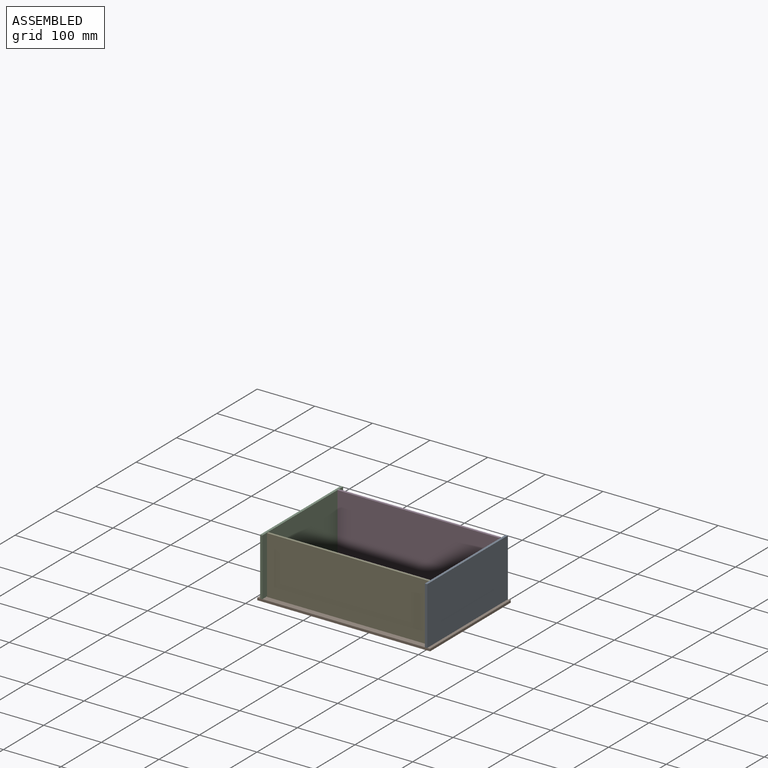
[diagram: assembled view]
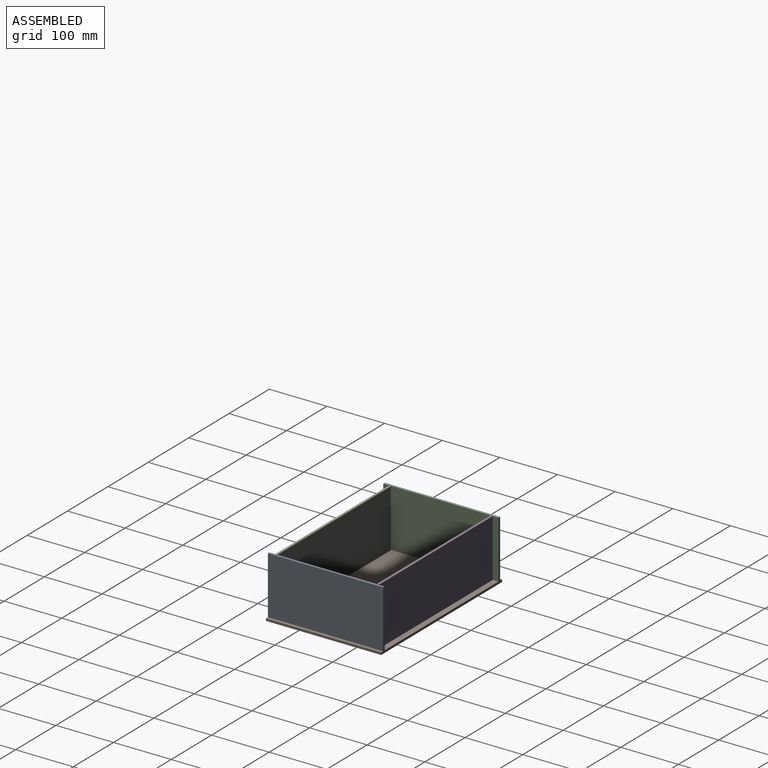
[diagram: assembled view, second angle]
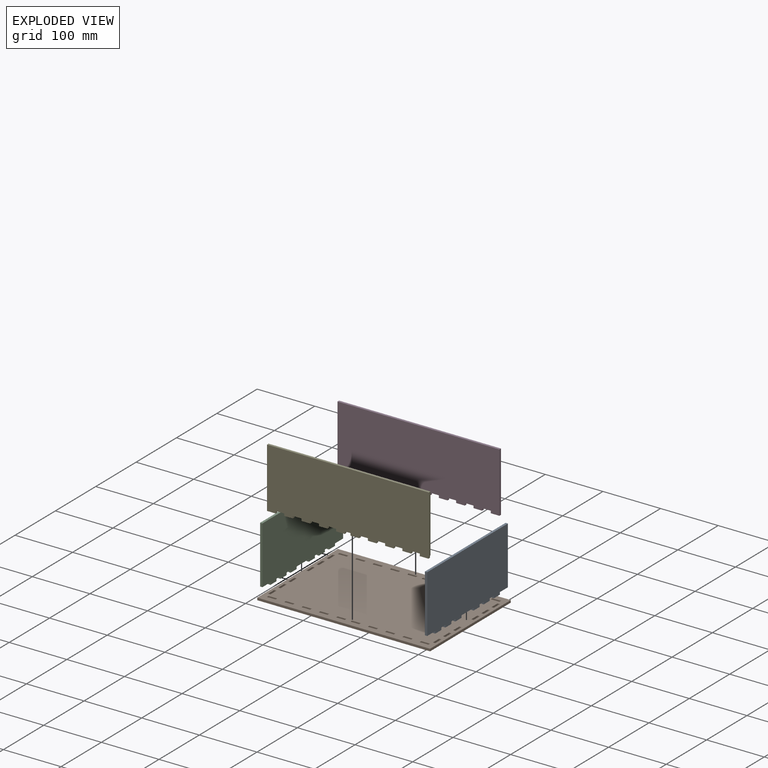
[diagram: exploded view]
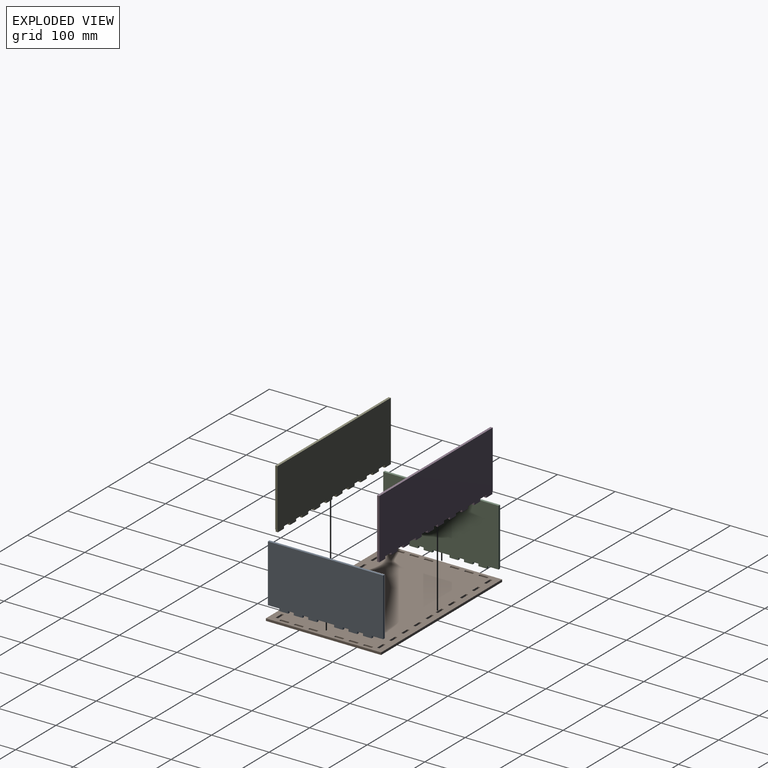
[diagram: exploded view, second angle]
ASSEMBLY  parts=5 mates=4
PART A: 30 faces, bbox 4x200x104 mm
  f0: plane 4x4mm, normal (0,-1,0), area 16mm2, adj f1,f3,f4,f29
  f1: plane 200x104mm, normal (1,0,0), area 20360mm2, adj f0,f2,f4,f5,f6,f7,f8,f9
  f2: plane 4x4mm, normal (0,1,0), area 16mm2, adj f1,f3,f4,f5
  f3: plane 200x104mm, normal (-1,0,0), area 20360mm2, adj f0,f2,f4,f5,f6,f7,f8,f9
  f4: plane 15x4mm, normal (0,0,-1), area 60mm2, adj f0,f1,f2,f3
  f5: plane 10x4mm, normal (0,0,-1), area 40mm2, adj f1,f2,f3,f6
  f6: plane 4x4mm, normal (0,-1,0), area 16mm2, adj f1,f3,f5,f8
  f7: plane 4x4mm, normal (0,1,0), area 16mm2, adj f1,f3,f8,f9
  f8: plane 15x4mm, normal (0,0,-1), area 60mm2, adj f1,f3,f6,f7
  f9: plane 10x4mm, normal (0,0,-1), area 40mm2, adj f1,f3,f7,f10
  f10: plane 4x4mm, normal (0,-1,0), area 16mm2, adj f1,f3,f9,f12
  f11: plane 4x4mm, normal (0,1,0), area 16mm2, adj f1,f3,f12,f13
  f12: plane 15x4mm, normal (0,0,-1), area 60mm2, adj f1,f3,f10,f11
  f13: plane 30x4mm, normal (0,0,-1), area 120mm2, adj f1,f3,f11,f15
  f14: plane 4x4mm, normal (0,1,0), area 16mm2, adj f1,f3,f16,f17
  f15: plane 4x4mm, normal (0,-1,0), area 16mm2, adj f1,f3,f13,f16
  f16: plane 15x4mm, normal (0,0,-1), area 60mm2, adj f1,f3,f14,f15
  f17: plane 10x4mm, normal (0,0,-1), area 40mm2, adj f1,f3,f14,f19
  f18: plane 4x4mm, normal (0,1,0), area 16mm2, adj f1,f3,f20,f21
  f19: plane 4x4mm, normal (0,-1,0), area 16mm2, adj f1,f3,f17,f20
  f20: plane 15x4mm, normal (0,0,-1), area 60mm2, adj f1,f3,f18,f19
  f21: plane 10x4mm, normal (0,0,-1), area 40mm2, adj f1,f3,f18,f23
  f22: plane 4x4mm, normal (0,1,0), area 16mm2, adj f1,f3,f24,f25
  f23: plane 4x4mm, normal (0,-1,0), area 16mm2, adj f1,f3,f21,f24
  f24: plane 15x4mm, normal (0,0,-1), area 60mm2, adj f1,f3,f22,f23
  f25: plane 20x4mm, normal (0,0,-1), area 80mm2, adj f1,f3,f22,f27
  f26: plane 100x4mm, normal (0,-1,0), area 400mm2, adj f1,f3,f28,f29
  f27: plane 100x4mm, normal (0,1,0), area 400mm2, adj f1,f3,f25,f28
  f28: plane 200x4mm, normal (0,0,1), area 800mm2, adj f1,f3,f26,f27
  f29: plane 20x4mm, normal (0,0,-1), area 80mm2, adj f0,f1,f3,f26
PART B: 134 faces, bbox 300x200x4 mm
  f0: plane 15x4mm, normal (-1,0,0), area 60mm2, adj f1,f131,f132,f133
  f1: plane 4x4mm, normal (0,1,0), area 16mm2, adj f0,f2,f132,f133
  f2: plane 15x4mm, normal (1,0,0), area 60mm2, adj f1,f131,f132,f133
  f3: plane 4x4mm, normal (0,1,0), area 16mm2, adj f4,f99,f132,f133
  f4: plane 15x4mm, normal (1,0,0), area 60mm2, adj f3,f5,f132,f133
  f5: plane 4x4mm, normal (0,-1,0), area 16mm2, adj f4,f99,f132,f133
  f6: plane 15x4mm, normal (-1,0,0), area 60mm2, adj f7,f100,f132,f133
  f7: plane 4x4mm, normal (0,1,0), area 16mm2, adj f6,f8,f132,f133
  f8: plane 15x4mm, normal (1,0,0), area 60mm2, adj f7,f100,f132,f133
  f9: plane 15x4mm, normal (-1,0,0), area 60mm2, adj f10,f101,f132,f133
  f10: plane 4x4mm, normal (0,1,0), area 16mm2, adj f9,f11,f132,f133
  f11: plane 15x4mm, normal (1,0,0), area 60mm2, adj f10,f101,f132,f133
  f12: plane 4x4mm, normal (-1,0,0), area 16mm2, adj f13,f102,f132,f133
  f13: plane 15x4mm, normal (0,1,0), area 60mm2, adj f12,f14,f132,f133
  f14: plane 4x4mm, normal (1,0,0), area 16mm2, adj f13,f102,f132,f133
  f15: plane 4x4mm, normal (1,0,0), area 16mm2, adj f16,f103,f132,f133
  f16: plane 15x4mm, normal (0,-1,0), area 60mm2, adj f15,f17,f132,f133
  f17: plane 4x4mm, normal (-1,0,0), area 16mm2, adj f16,f103,f132,f133
  f18: plane 4x4mm, normal (1,0,0), area 16mm2, adj f19,f104,f132,f133
  f19: plane 15x4mm, normal (0,-1,0), area 60mm2, adj f18,f20,f132,f133
  f20: plane 4x4mm, normal (-1,0,0), area 16mm2, adj f19,f104,f132,f133
  f21: plane 15x4mm, normal (1,0,0), area 60mm2, adj f22,f105,f132,f133
  f22: plane 4x4mm, normal (0,-1,0), area 16mm2, adj f21,f23,f132,f133
  f23: plane 15x4mm, normal (-1,0,0), area 60mm2, adj f22,f105,f132,f133
  f24: plane 15x4mm, normal (0,1,0), area 60mm2, adj f25,f106,f132,f133
  f25: plane 4x4mm, normal (1,0,0), area 16mm2, adj f24,f26,f132,f133
  f26: plane 15x4mm, normal (0,-1,0), area 60mm2, adj f25,f106,f132,f133
  f27: plane 15x4mm, normal (0,1,0), area 60mm2, adj f28,f107,f132,f133
  f28: plane 4x4mm, normal (1,0,0), area 16mm2, adj f27,f29,f132,f133
  f29: plane 15x4mm, normal (0,-1,0), area 60mm2, adj f28,f107,f132,f133
  f30: plane 15x4mm, normal (0,1,0), area 60mm2, adj f31,f108,f132,f133
  f31: plane 4x4mm, normal (1,0,0), area 16mm2, adj f30,f32,f132,f133
  f32: plane 15x4mm, normal (0,-1,0), area 60mm2, adj f31,f108,f132,f133
  f33: plane 200x4mm, normal (1,0,0), area 800mm2, adj f34,f109,f132,f133
  f34: plane 300x4mm, normal (0,1,0), area 1200mm2, adj f33,f35,f132,f133
  f35: plane 200x4mm, normal (-1,0,0), area 800mm2, adj f34,f109,f132,f133
  f36: plane 15x4mm, normal (0,-1,0), area 60mm2, adj f37,f110,f132,f133
  f37: plane 4x4mm, normal (-1,0,0), area 16mm2, adj f36,f38,f132,f133
  f38: plane 15x4mm, normal (0,1,0), area 60mm2, adj f37,f110,f132,f133
  f39: plane 4x4mm, normal (-1,0,0), area 16mm2, adj f40,f111,f132,f133
  f40: plane 15x4mm, normal (0,1,0), area 60mm2, adj f39,f41,f132,f133
  f41: plane 4x4mm, normal (1,0,0), area 16mm2, adj f40,f111,f132,f133
  f42: plane 4x4mm, normal (-1,0,0), area 16mm2, adj f43,f112,f132,f133
  f43: plane 15x4mm, normal (0,1,0), area 60mm2, adj f42,f44,f132,f133
  f44: plane 4x4mm, normal (1,0,0), area 16mm2, adj f43,f112,f132,f133
  f45: plane 4x4mm, normal (-1,0,0), area 16mm2, adj f46,f113,f132,f133
  f46: plane 15x4mm, normal (0,1,0), area 60mm2, adj f45,f47,f132,f133
  f47: plane 4x4mm, normal (1,0,0), area 16mm2, adj f46,f113,f132,f133
  f48: plane 4x4mm, normal (-1,0,0), area 16mm2, adj f49,f114,f132,f133
  f49: plane 15x4mm, normal (0,1,0), area 60mm2, adj f48,f50,f132,f133
  f50: plane 4x4mm, normal (1,0,0), area 16mm2, adj f49,f114,f132,f133
  f51: plane 15x4mm, normal (0,1,0), area 60mm2, adj f52,f115,f132,f133
  f52: plane 4x4mm, normal (1,0,0), area 16mm2, adj f51,f53,f132,f133
  f53: plane 15x4mm, normal (0,-1,0), area 60mm2, adj f52,f115,f132,f133
  f54: plane 4x4mm, normal (-1,0,0), area 16mm2, adj f55,f116,f132,f133
  f55: plane 15x4mm, normal (0,1,0), area 60mm2, adj f54,f56,f132,f133
  f56: plane 4x4mm, normal (1,0,0), area 16mm2, adj f55,f116,f132,f133
  f57: plane 4x4mm, normal (0,1,0), area 16mm2, adj f58,f117,f132,f133
  f58: plane 15x4mm, normal (1,0,0), area 60mm2, adj f57,f59,f132,f133
  f59: plane 4x4mm, normal (0,-1,0), area 16mm2, adj f58,f117,f132,f133
  f60: plane 4x4mm, normal (0,1,0), area 16mm2, adj f61,f118,f132,f133
  f61: plane 15x4mm, normal (1,0,0), area 60mm2, adj f60,f62,f132,f133
  f62: plane 4x4mm, normal (0,-1,0), area 16mm2, adj f61,f118,f132,f133
  f63: plane 4x4mm, normal (0,1,0), area 16mm2, adj f64,f119,f132,f133
  f64: plane 15x4mm, normal (1,0,0), area 60mm2, adj f63,f65,f132,f133
  f65: plane 4x4mm, normal (0,-1,0), area 16mm2, adj f64,f119,f132,f133
  f66: plane 15x4mm, normal (-1,0,0), area 60mm2, adj f67,f120,f132,f133
  f67: plane 4x4mm, normal (0,1,0), area 16mm2, adj f66,f68,f132,f133
  f68: plane 15x4mm, normal (1,0,0), area 60mm2, adj f67,f120,f132,f133
  f69: plane 4x4mm, normal (0,1,0), area 16mm2, adj f70,f121,f132,f133
  f70: plane 15x4mm, normal (1,0,0), area 60mm2, adj f69,f71,f132,f133
  f71: plane 4x4mm, normal (0,-1,0), area 16mm2, adj f70,f121,f132,f133
  f72: plane 15x4mm, normal (0,1,0), area 60mm2, adj f73,f122,f132,f133
  f73: plane 4x4mm, normal (1,0,0), area 16mm2, adj f72,f74,f132,f133
  f74: plane 15x4mm, normal (0,-1,0), area 60mm2, adj f73,f122,f132,f133
  f75: plane 4x4mm, normal (1,0,0), area 16mm2, adj f76,f123,f132,f133
  f76: plane 15x4mm, normal (0,-1,0), area 60mm2, adj f75,f77,f132,f133
  f77: plane 4x4mm, normal (-1,0,0), area 16mm2, adj f76,f123,f132,f133
  f78: plane 4x4mm, normal (1,0,0), area 16mm2, adj f79,f124,f132,f133
  f79: plane 15x4mm, normal (0,-1,0), area 60mm2, adj f78,f80,f132,f133
  f80: plane 4x4mm, normal (-1,0,0), area 16mm2, adj f79,f124,f132,f133
  f81: plane 4x4mm, normal (1,0,0), area 16mm2, adj f82,f125,f132,f133
  f82: plane 15x4mm, normal (0,-1,0), area 60mm2, adj f81,f83,f132,f133
  f83: plane 4x4mm, normal (-1,0,0), area 16mm2, adj f82,f125,f132,f133
  f84: plane 4x4mm, normal (1,0,0), area 16mm2, adj f85,f126,f132,f133
  f85: plane 15x4mm, normal (0,-1,0), area 60mm2, adj f84,f86,f132,f133
  f86: plane 4x4mm, normal (-1,0,0), area 16mm2, adj f85,f126,f132,f133
  f87: plane 4x4mm, normal (1,0,0), area 16mm2, adj f88,f127,f132,f133
  f88: plane 15x4mm, normal (0,-1,0), area 60mm2, adj f87,f89,f132,f133
  f89: plane 4x4mm, normal (-1,0,0), area 16mm2, adj f88,f127,f132,f133
  f90: plane 4x4mm, normal (1,0,0), area 16mm2, adj f91,f128,f132,f133
  f91: plane 15x4mm, normal (0,-1,0), area 60mm2, adj f90,f92,f132,f133
  f92: plane 4x4mm, normal (-1,0,0), area 16mm2, adj f91,f128,f132,f133
  f93: plane 15x4mm, normal (1,0,0), area 60mm2, adj f94,f129,f132,f133
  f94: plane 4x4mm, normal (0,-1,0), area 16mm2, adj f93,f95,f132,f133
  f95: plane 15x4mm, normal (-1,0,0), area 60mm2, adj f94,f129,f132,f133
  f96: plane 15x4mm, normal (-1,0,0), area 60mm2, adj f97,f130,f132,f133
  f97: plane 4x4mm, normal (0,1,0), area 16mm2, adj f96,f98,f132,f133
  f98: plane 15x4mm, normal (1,0,0), area 60mm2, adj f97,f130,f132,f133
  f99: plane 15x4mm, normal (-1,0,0), area 60mm2, adj f3,f5,f132,f133
  f100: plane 4x4mm, normal (0,-1,0), area 16mm2, adj f6,f8,f132,f133
  f101: plane 4x4mm, normal (0,-1,0), area 16mm2, adj f9,f11,f132,f133
  f102: plane 15x4mm, normal (0,-1,0), area 60mm2, adj f12,f14,f132,f133
  f103: plane 15x4mm, normal (0,1,0), area 60mm2, adj f15,f17,f132,f133
  f104: plane 15x4mm, normal (0,1,0), area 60mm2, adj f18,f20,f132,f133
  f105: plane 4x4mm, normal (0,1,0), area 16mm2, adj f21,f23,f132,f133
  f106: plane 4x4mm, normal (-1,0,0), area 16mm2, adj f24,f26,f132,f133
  f107: plane 4x4mm, normal (-1,0,0), area 16mm2, adj f27,f29,f132,f133
  f108: plane 4x4mm, normal (-1,0,0), area 16mm2, adj f30,f32,f132,f133
  f109: plane 300x4mm, normal (0,-1,0), area 1200mm2, adj f33,f35,f132,f133
  f110: plane 4x4mm, normal (1,0,0), area 16mm2, adj f36,f38,f132,f133
  f111: plane 15x4mm, normal (0,-1,0), area 60mm2, adj f39,f41,f132,f133
  f112: plane 15x4mm, normal (0,-1,0), area 60mm2, adj f42,f44,f132,f133
  f113: plane 15x4mm, normal (0,-1,0), area 60mm2, adj f45,f47,f132,f133
  f114: plane 15x4mm, normal (0,-1,0), area 60mm2, adj f48,f50,f132,f133
  f115: plane 4x4mm, normal (-1,0,0), area 16mm2, adj f51,f53,f132,f133
  f116: plane 15x4mm, normal (0,-1,0), area 60mm2, adj f54,f56,f132,f133
  f117: plane 15x4mm, normal (-1,0,0), area 60mm2, adj f57,f59,f132,f133
  f118: plane 15x4mm, normal (-1,0,0), area 60mm2, adj f60,f62,f132,f133
  f119: plane 15x4mm, normal (-1,0,0), area 60mm2, adj f63,f65,f132,f133
  f120: plane 4x4mm, normal (0,-1,0), area 16mm2, adj f66,f68,f132,f133
  f121: plane 15x4mm, normal (-1,0,0), area 60mm2, adj f69,f71,f132,f133
  f122: plane 4x4mm, normal (-1,0,0), area 16mm2, adj f72,f74,f132,f133
  f123: plane 15x4mm, normal (0,1,0), area 60mm2, adj f75,f77,f132,f133
  f124: plane 15x4mm, normal (0,1,0), area 60mm2, adj f78,f80,f132,f133
  f125: plane 15x4mm, normal (0,1,0), area 60mm2, adj f81,f83,f132,f133
  f126: plane 15x4mm, normal (0,1,0), area 60mm2, adj f84,f86,f132,f133
  f127: plane 15x4mm, normal (0,1,0), area 60mm2, adj f87,f89,f132,f133
  f128: plane 15x4mm, normal (0,1,0), area 60mm2, adj f90,f92,f132,f133
  f129: plane 4x4mm, normal (0,1,0), area 16mm2, adj f93,f95,f132,f133
  f130: plane 4x4mm, normal (0,-1,0), area 16mm2, adj f96,f98,f132,f133
  f131: plane 4x4mm, normal (0,-1,0), area 16mm2, adj f0,f2,f132,f133
  f132: plane 300x200mm, normal (0,0,1), area 58080mm2, adj f0,f1,f2,f3,f4,f5,f6,f7
  f133: plane 300x200mm, normal (0,0,-1), area 58080mm2, adj f0,f1,f2,f3,f4,f5,f6,f7
PART C: same geometry as A
PART D: 44 faces, bbox 281x4x104 mm
  f0: plane 4x4mm, normal (1,0,0), area 16mm2, adj f1,f3,f4,f5
  f1: plane 281x104mm, normal (0,1,0), area 28700mm2, adj f0,f2,f4,f5,f6,f7,f8,f9
  f2: plane 4x4mm, normal (-1,0,0), area 16mm2, adj f1,f3,f4,f43
  f3: plane 281x104mm, normal (0,-1,0), area 28700mm2, adj f0,f2,f4,f5,f6,f7,f8,f9
  f4: plane 15x4mm, normal (0,0,-1), area 60mm2, adj f0,f1,f2,f3
  f5: plane 15x4mm, normal (0,0,-1), area 60mm2, adj f0,f1,f3,f7
  f6: plane 4x4mm, normal (1,0,0), area 16mm2, adj f1,f3,f8,f9
  f7: plane 4x4mm, normal (-1,0,0), area 16mm2, adj f1,f3,f5,f8
  f8: plane 15x4mm, normal (0,0,-1), area 60mm2, adj f1,f3,f6,f7
  f9: plane 15x4mm, normal (0,0,-1), area 60mm2, adj f1,f3,f6,f11
  f10: plane 4x4mm, normal (1,0,0), area 16mm2, adj f1,f3,f12,f13
  f11: plane 4x4mm, normal (-1,0,0), area 16mm2, adj f1,f3,f9,f12
  f12: plane 15x4mm, normal (0,0,-1), area 60mm2, adj f1,f3,f10,f11
  f13: plane 15x4mm, normal (0,0,-1), area 60mm2, adj f1,f3,f10,f15
  f14: plane 4x4mm, normal (1,0,0), area 16mm2, adj f1,f3,f16,f17
  f15: plane 4x4mm, normal (-1,0,0), area 16mm2, adj f1,f3,f13,f16
  f16: plane 15x4mm, normal (0,0,-1), area 60mm2, adj f1,f3,f14,f15
  f17: plane 15x4mm, normal (0,0,-1), area 60mm2, adj f1,f3,f14,f19
  f18: plane 4x4mm, normal (1,0,0), area 16mm2, adj f1,f3,f20,f21
  f19: plane 4x4mm, normal (-1,0,0), area 16mm2, adj f1,f3,f17,f20
  f20: plane 15x4mm, normal (0,0,-1), area 60mm2, adj f1,f3,f18,f19
  f21: plane 10x4mm, normal (0,0,-1), area 40mm2, adj f1,f3,f18,f22
  f22: plane 4x4mm, normal (-1,0,0), area 16mm2, adj f1,f3,f21,f24
  f23: plane 4x4mm, normal (1,0,0), area 16mm2, adj f1,f3,f24,f25
  f24: plane 15x4mm, normal (0,0,-1), area 60mm2, adj f1,f3,f22,f23
  f25: plane 15x4mm, normal (0,0,-1), area 60mm2, adj f1,f3,f23,f30
  f26: plane 4x4mm, normal (-1,0,0), area 16mm2, adj f1,f3,f28,f33
  f27: plane 4x4mm, normal (1,0,0), area 16mm2, adj f1,f3,f28,f29
  f28: plane 15x4mm, normal (0,0,-1), area 60mm2, adj f1,f3,f26,f27
  f29: plane 15x4mm, normal (0,0,-1), area 60mm2, adj f1,f3,f27,f34
  f30: plane 4x4mm, normal (-1,0,0), area 16mm2, adj f1,f3,f25,f32
  f31: plane 4x4mm, normal (1,0,0), area 16mm2, adj f1,f3,f32,f33
  f32: plane 15x4mm, normal (0,0,-1), area 60mm2, adj f1,f3,f30,f31
  f33: plane 15x4mm, normal (0,0,-1), area 60mm2, adj f1,f3,f26,f31
  f34: plane 4x4mm, normal (-1,0,0), area 16mm2, adj f1,f3,f29,f36
  f35: plane 4x4mm, normal (1,0,0), area 16mm2, adj f1,f3,f36,f37
  f36: plane 15x4mm, normal (0,0,-1), area 60mm2, adj f1,f3,f34,f35
  f37: plane 15x4mm, normal (0,0,-1), area 60mm2, adj f1,f3,f35,f39
  f38: plane 104x4mm, normal (1,0,0), area 416mm2, adj f1,f3,f40,f42
  f39: plane 4x4mm, normal (-1,0,0), area 16mm2, adj f1,f3,f37,f40
  f40: plane 15x4mm, normal (0,0,-1), area 60mm2, adj f1,f3,f38,f39
  f41: plane 100x4mm, normal (-1,0,0), area 400mm2, adj f1,f3,f42,f43
  f42: plane 281x4mm, normal (0,0,1), area 1124mm2, adj f1,f3,f38,f41
  f43: plane 4x1mm, normal (0,0,-1), area 4mm2, adj f1,f2,f3,f41
PART E: same geometry as D
PLACE A rot(axis=(0,0,1),180deg) t=(-188.01,197.63,-209.6)mm
PLACE B t=(-188.01,197.63,-209.6)mm
PLACE C t=(-188.01,197.63,-209.6)mm
PLACE D t=(-188.01,197.63,-209.6)mm
PLACE E rot(axis=(0,0,1),180deg) t=(-188.01,197.63,-209.6)mm
MATE fastened E.f21 <-> B.f132  axis (0,0,-1) through (-183.01,107.63,-205.6)mm
MATE fastened B.f132 <-> A.f13  axis (0,0,1) through (-45.01,212.63,-205.6)mm
MATE fastened B.f132 <-> C.f13  axis (0,0,1) through (-331.01,182.63,-205.6)mm
MATE fastened D.f21 <-> B.f132  axis (0,0,-1) through (-183.01,287.63,-205.6)mm
